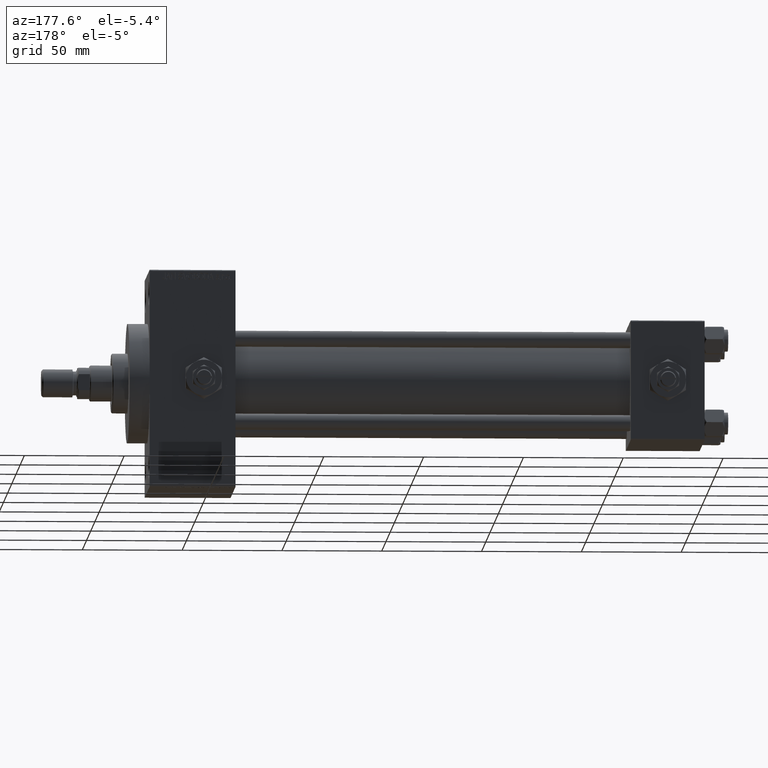
[diagram: clean part render]
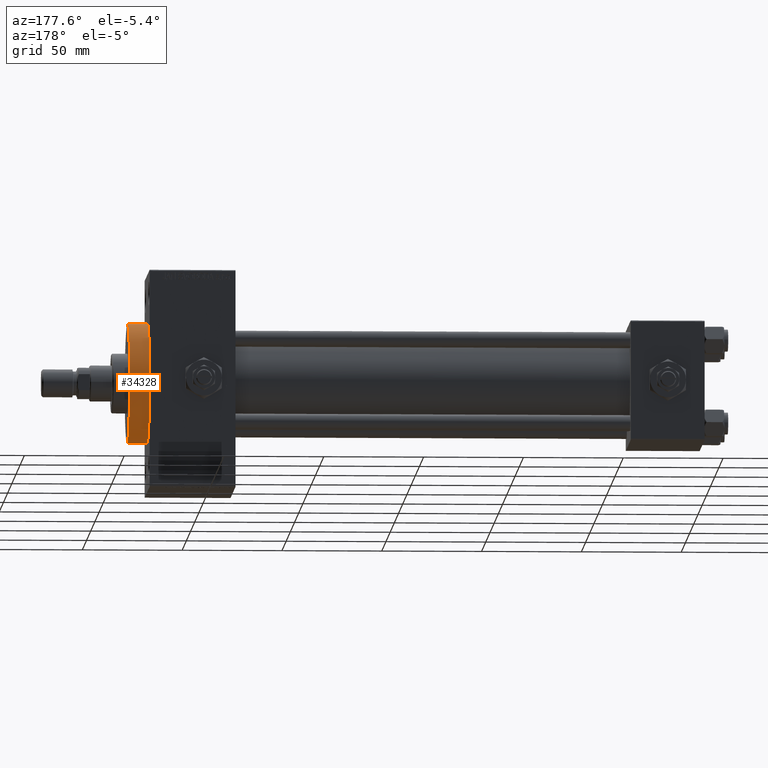
[diagram: same view with one face highlighted and labeled with its STEP entity id]
A machine part, auxiliary view. The second image highlights one B-rep face of the part: STEP entity #34328.
In plain terms, the highlighted cylindrical surface (partial cylindrical patch) has radius 30 mm, axis along (-1, -0, -0).
Its self-contained STEP definition (entity closure, byte-faithful):
#436 = AXIS2_PLACEMENT_3D ( 'NONE', #44415, #33080, #40388 ) ;
#1087 = VERTEX_POINT ( 'NONE', #10327 ) ;
#1328 = CARTESIAN_POINT ( 'NONE',  ( 288.0000000000000568, 0.000000000000000000, 30.00000000000000000 ) ) ;
#2090 = FACE_OUTER_BOUND ( 'NONE', #26935, .T. ) ;
#4167 = EDGE_CURVE ( 'NONE', #47294, #1087, #10501, .T. ) ;
#5224 = CARTESIAN_POINT ( 'NONE',  ( 288.0000000000000568, 3.673940397442059178E-15, -30.00000000000000000 ) ) ;
#5738 = AXIS2_PLACEMENT_3D ( 'NONE', #48310, #13825, #44554 ) ;
#6107 = DIRECTION ( 'NONE',  ( -1.000000000000000000, -0.000000000000000000, -0.000000000000000000 ) ) ;
#8127 = LINE ( 'NONE', #1328, #42063 ) ;
#8170 = DIRECTION ( 'NONE',  ( 1.000000000000000000, 0.000000000000000000, 0.000000000000000000 ) ) ;
#9206 = CARTESIAN_POINT ( 'NONE',  ( 288.0000000000000568, 3.673940397442059178E-15, -30.00000000000000000 ) ) ;
#10327 = CARTESIAN_POINT ( 'NONE',  ( 288.0000000000000568, 0.000000000000000000, 30.00000000000000000 ) ) ;
#10501 = CIRCLE ( 'NONE', #40249, 30.00000000000000000 ) ;
#11334 = VERTEX_POINT ( 'NONE', #39980 ) ;
#11655 = CIRCLE ( 'NONE', #436, 30.00000000000000000 ) ;
#13146 = CARTESIAN_POINT ( 'NONE',  ( 288.0000000000000568, 0.000000000000000000, 0.000000000000000000 ) ) ;
#13825 = DIRECTION ( 'NONE',  ( 1.000000000000000000, 0.000000000000000000, 0.000000000000000000 ) ) ;
#16756 = EDGE_CURVE ( 'NONE', #41071, #11334, #27430, .T. ) ;
#16782 = LINE ( 'NONE', #5224, #38833 ) ;
#19088 = AXIS2_PLACEMENT_3D ( 'NONE', #13146, #6107, #47889 ) ;
#19242 = VERTEX_POINT ( 'NONE', #23848 ) ;
#19487 = CARTESIAN_POINT ( 'NONE',  ( 288.0000000000000568, 0.000000000000000000, 0.000000000000000000 ) ) ;
#20063 = ORIENTED_EDGE ( 'NONE', *, *, #24935, .F. ) ;
#20191 = EDGE_CURVE ( 'NONE', #47294, #41071, #16782, .T. ) ;
#20572 = DIRECTION ( 'NONE',  ( -1.000000000000000000, -0.000000000000000000, -0.000000000000000000 ) ) ;
#20943 = ORIENTED_EDGE ( 'NONE', *, *, #16756, .T. ) ;
#23848 = CARTESIAN_POINT ( 'NONE',  ( 278.0000000000000000, 0.000000000000000000, 30.00000000000000000 ) ) ;
#24935 = EDGE_CURVE ( 'NONE', #1087, #19242, #8127, .T. ) ;
#25474 = CYLINDRICAL_SURFACE ( 'NONE', #19088, 30.00000000000000000 ) ;
#26761 = ORIENTED_EDGE ( 'NONE', *, *, #4167, .F. ) ;
#26935 = EDGE_LOOP ( 'NONE', ( #26761, #43948, #20943, #27845, #20063 ) ) ;
#27430 = CIRCLE ( 'NONE', #5738, 30.00000000000000000 ) ;
#27845 = ORIENTED_EDGE ( 'NONE', *, *, #29320, .T. ) ;
#29320 = EDGE_CURVE ( 'NONE', #11334, #19242, #11655, .T. ) ;
#33080 = DIRECTION ( 'NONE',  ( 1.000000000000000000, 0.000000000000000000, 0.000000000000000000 ) ) ;
#34328 = ADVANCED_FACE ( 'NONE', ( #2090 ), #25474, .T. ) ;
#35342 = DIRECTION ( 'NONE',  ( 0.000000000000000000, 0.000000000000000000, -1.000000000000000000 ) ) ;
#38833 = VECTOR ( 'NONE', #20572, 1000.000000000000000 ) ;
#39980 = CARTESIAN_POINT ( 'NONE',  ( 278.0000000000000000, 30.00000000000000000, 0.000000000000000000 ) ) ;
#40249 = AXIS2_PLACEMENT_3D ( 'NONE', #19487, #8170, #35342 ) ;
#40388 = DIRECTION ( 'NONE',  ( 0.000000000000000000, 0.000000000000000000, -1.000000000000000000 ) ) ;
#41071 = VERTEX_POINT ( 'NONE', #47328 ) ;
#42063 = VECTOR ( 'NONE', #47140, 1000.000000000000000 ) ;
#43948 = ORIENTED_EDGE ( 'NONE', *, *, #20191, .T. ) ;
#44415 = CARTESIAN_POINT ( 'NONE',  ( 278.0000000000000000, 0.000000000000000000, 0.000000000000000000 ) ) ;
#44554 = DIRECTION ( 'NONE',  ( 0.000000000000000000, 0.000000000000000000, -1.000000000000000000 ) ) ;
#47140 = DIRECTION ( 'NONE',  ( -1.000000000000000000, -0.000000000000000000, -0.000000000000000000 ) ) ;
#47294 = VERTEX_POINT ( 'NONE', #9206 ) ;
#47328 = CARTESIAN_POINT ( 'NONE',  ( 278.0000000000000000, 3.673940397442059178E-15, -30.00000000000000000 ) ) ;
#47889 = DIRECTION ( 'NONE',  ( 0.000000000000000000, 0.000000000000000000, 1.000000000000000000 ) ) ;
#48310 = CARTESIAN_POINT ( 'NONE',  ( 278.0000000000000000, 0.000000000000000000, 0.000000000000000000 ) ) ;